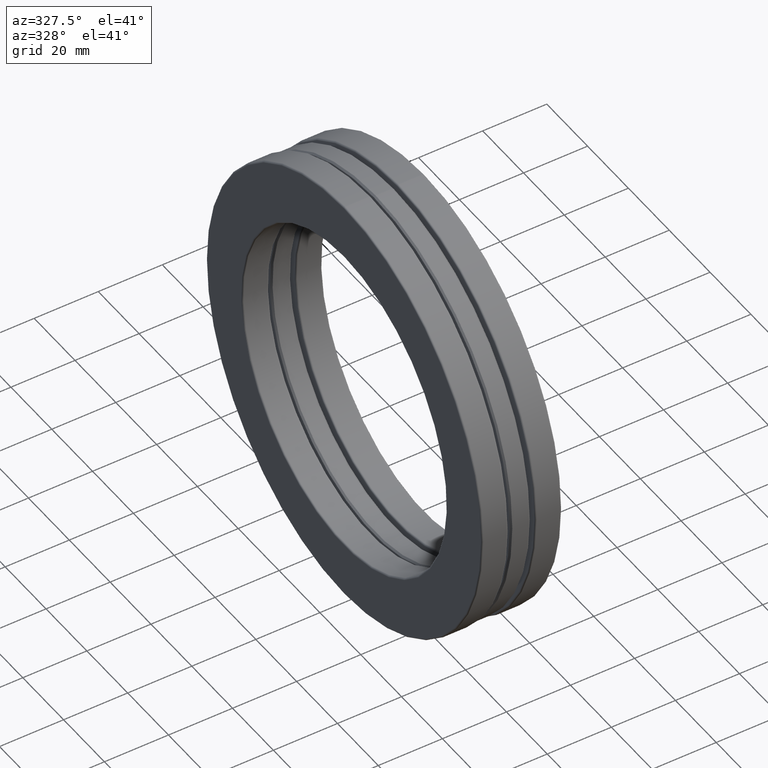
[diagram: clean part render]
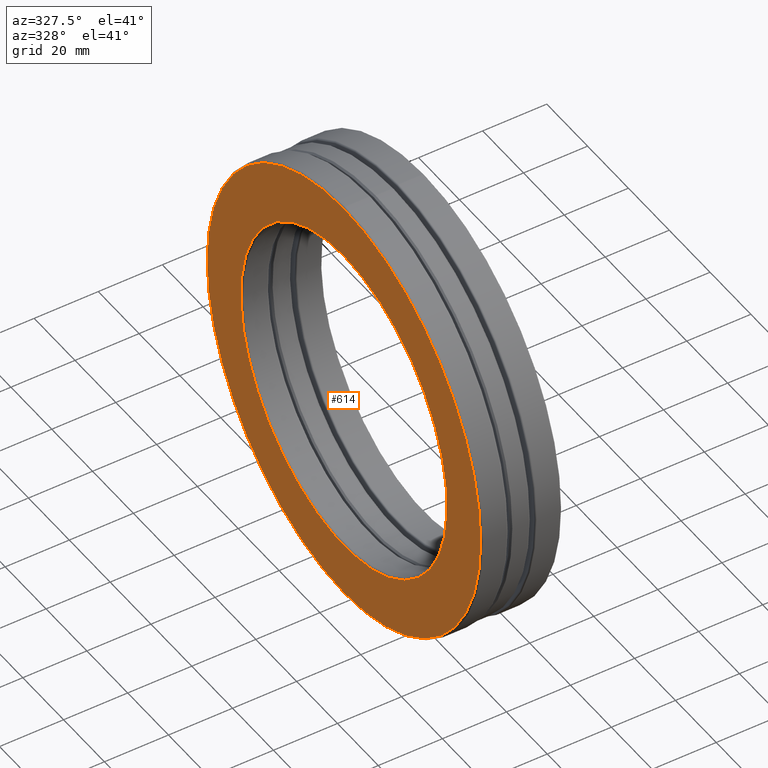
[diagram: same view with one face highlighted and labeled with its STEP entity id]
A machine part, auxiliary view. The second image highlights one B-rep face of the part: STEP entity #614.
In plain terms, the highlighted planar face has unit normal (1, 0, 0).
Its self-contained STEP definition (entity closure, byte-faithful):
#4 = CIRCLE ( 'NONE', #454, 2.637500000000000600 ) ;
#17 = DIRECTION ( 'NONE',  ( 1.000000000000000000, 0.0000000000000000000, 0.0000000000000000000 ) ) ;
#73 = VERTEX_POINT ( 'NONE', #673 ) ;
#80 = DIRECTION ( 'NONE',  ( -1.000000000000000000, -0.0000000000000000000, -0.0000000000000000000 ) ) ;
#82 = DIRECTION ( 'NONE',  ( 0.0000000000000000000, 0.0000000000000000000, -1.000000000000000000 ) ) ;
#221 = CARTESIAN_POINT ( 'NONE',  ( -0.4920000000000001000, 0.0000000000000000000, 2.637500000000000600 ) ) ;
#312 = EDGE_CURVE ( 'NONE', #318, #318, #4, .T. ) ;
#318 = VERTEX_POINT ( 'NONE', #221 ) ;
#340 = FACE_BOUND ( 'NONE', #371, .T. ) ;
#371 = EDGE_LOOP ( 'NONE', ( #739 ) ) ;
#377 = PLANE ( 'NONE',  #462 ) ;
#387 = DIRECTION ( 'NONE',  ( 0.0000000000000000000, 0.0000000000000000000, 1.000000000000000000 ) ) ;
#430 = CIRCLE ( 'NONE', #604, 1.988499999999999900 ) ;
#454 = AXIS2_PLACEMENT_3D ( 'NONE', #612, #80, #724 ) ;
#462 = AXIS2_PLACEMENT_3D ( 'NONE', #824, #17, #82 ) ;
#542 = FACE_OUTER_BOUND ( 'NONE', #593, .T. ) ;
#578 = CARTESIAN_POINT ( 'NONE',  ( -0.4919999999999999900, 0.0000000000000000000, 0.0000000000000000000 ) ) ;
#593 = EDGE_LOOP ( 'NONE', ( #754 ) ) ;
#604 = AXIS2_PLACEMENT_3D ( 'NONE', #578, #699, #387 ) ;
#612 = CARTESIAN_POINT ( 'NONE',  ( -0.4920000000000001000, 0.0000000000000000000, 0.0000000000000000000 ) ) ;
#614 = ADVANCED_FACE ( 'NONE', ( #340, #542 ), #377, .F. ) ;
#673 = CARTESIAN_POINT ( 'NONE',  ( -0.4919999999999999900, 0.0000000000000000000, 1.988499999999999900 ) ) ;
#699 = DIRECTION ( 'NONE',  ( -1.000000000000000000, -0.0000000000000000000, -0.0000000000000000000 ) ) ;
#709 = EDGE_CURVE ( 'NONE', #73, #73, #430, .T. ) ;
#724 = DIRECTION ( 'NONE',  ( 0.0000000000000000000, 0.0000000000000000000, 1.000000000000000000 ) ) ;
#739 = ORIENTED_EDGE ( 'NONE', *, *, #709, .F. ) ;
#754 = ORIENTED_EDGE ( 'NONE', *, *, #312, .T. ) ;
#824 = CARTESIAN_POINT ( 'NONE',  ( -0.4920000000000000500, -1.035492459848085600E-016, 0.0000000000000000000 ) ) ;